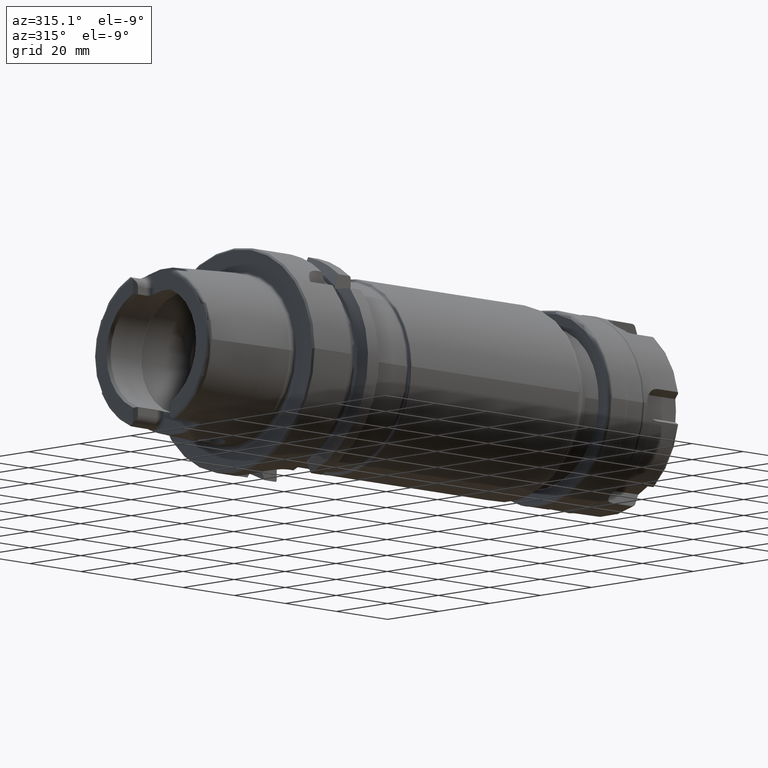
[diagram: clean part render]
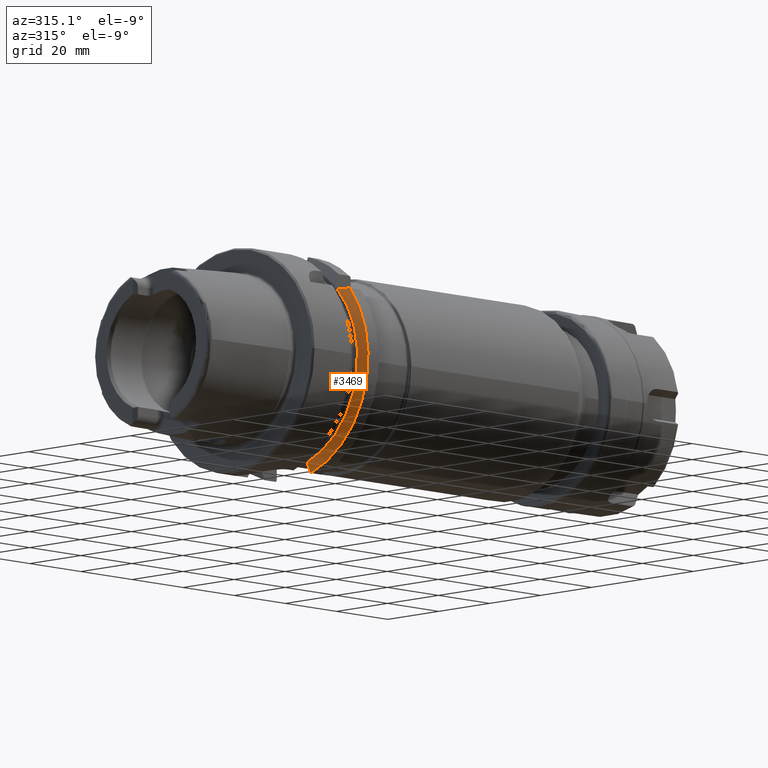
[diagram: same view with one face highlighted and labeled with its STEP entity id]
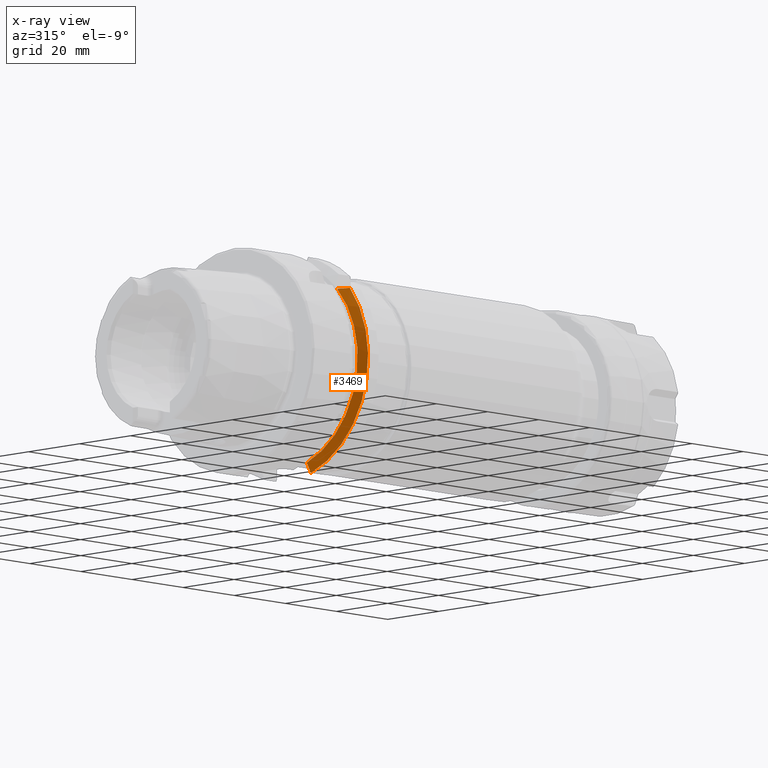
[diagram: x-ray of the same camera — body ghosted, the highlighted face saturated]
A machine part, auxiliary view. The second image highlights one B-rep face of the part: STEP entity #3469.
The next image is the same camera in x-ray: the body ghosted, the highlighted face saturated — about 0% of this face is hidden behind the body in this view.
In plain terms, the highlighted conical surface has half-angle 60 deg.
Its self-contained STEP definition (entity closure, byte-faithful):
#29=(
BOUNDED_CURVE()
B_SPLINE_CURVE(2,(#6226,#6227,#6228),.UNSPECIFIED.,.F.,.F.)
B_SPLINE_CURVE_WITH_KNOTS((3,3),(0.,0.378858277140999),.UNSPECIFIED.)
CURVE()
GEOMETRIC_REPRESENTATION_ITEM()
RATIONAL_B_SPLINE_CURVE((1.,1.00166199353854,1.))
REPRESENTATION_ITEM('')
);
#35=(
BOUNDED_CURVE()
B_SPLINE_CURVE(2,(#6366,#6367,#6368),.UNSPECIFIED.,.F.,.F.)
B_SPLINE_CURVE_WITH_KNOTS((3,3),(0.,0.311314369989023),.UNSPECIFIED.)
CURVE()
GEOMETRIC_REPRESENTATION_ITEM()
RATIONAL_B_SPLINE_CURVE((1.,1.00102053193598,1.))
REPRESENTATION_ITEM('')
);
#443=FACE_OUTER_BOUND('',#652,.T.);
#652=EDGE_LOOP('',(#2683,#2684,#2685,#2686));
#1208=CIRCLE('',#3803,28.8975952641916);
#1222=CIRCLE('',#3836,31.5);
#1470=VERTEX_POINT('',#6222);
#1472=VERTEX_POINT('',#6225);
#1494=VERTEX_POINT('',#6322);
#1499=VERTEX_POINT('',#6364);
#1875=EDGE_CURVE('',#1472,#1470,#29,.T.);
#1905=EDGE_CURVE('',#1470,#1494,#1208,.T.);
#1915=EDGE_CURVE('',#1494,#1499,#35,.T.);
#1962=EDGE_CURVE('',#1472,#1499,#1222,.T.);
#2683=ORIENTED_EDGE('',*,*,#1875,.T.);
#2684=ORIENTED_EDGE('',*,*,#1905,.T.);
#2685=ORIENTED_EDGE('',*,*,#1915,.T.);
#2686=ORIENTED_EDGE('',*,*,#1962,.F.);
#3356=CONICAL_SURFACE('',#3843,30.1987976320958,1.0471975511966);
#3469=ADVANCED_FACE('',(#443),#3356,.T.);
#3803=AXIS2_PLACEMENT_3D('',#6324,#4452,#4453);
#3836=AXIS2_PLACEMENT_3D('',#6576,#4538,#4539);
#3843=AXIS2_PLACEMENT_3D('',#6591,#4554,#4555);
#4452=DIRECTION('center_axis',(1.,0.,0.));
#4453=DIRECTION('ref_axis',(0.,0.,-1.));
#4538=DIRECTION('center_axis',(1.,0.,0.));
#4539=DIRECTION('ref_axis',(0.,0.,-1.));
#4554=DIRECTION('center_axis',(1.,0.,0.));
#4555=DIRECTION('ref_axis',(0.,-0.966819045705046,-0.255462194584608));
#6222=CARTESIAN_POINT('',(19.875,-20.8583559288126,20.));
#6225=CARTESIAN_POINT('',(21.3774990747593,-24.3361870472759,20.));
#6226=CARTESIAN_POINT('Ctrl Pts',(21.3774990747593,-24.3361870472759,20.));
#6227=CARTESIAN_POINT('Ctrl Pts',(20.5684390397668,-22.5223452916166,20.));
#6228=CARTESIAN_POINT('Ctrl Pts',(19.875,-20.8583559288126,20.));
#6322=CARTESIAN_POINT('',(19.875,-9.,-27.4603534582684));
#6324=CARTESIAN_POINT('Origin',(19.875,0.,0.));
#6364=CARTESIAN_POINT('',(21.3774990747593,-9.,-30.1869176962472));
#6366=CARTESIAN_POINT('Ctrl Pts',(19.875,-9.,-27.4603534582684));
#6367=CARTESIAN_POINT('Ctrl Pts',(20.5907174110267,-9.,-28.7648946319029));
#6368=CARTESIAN_POINT('Ctrl Pts',(21.3774990747593,-9.,-30.1869176962472));
#6576=CARTESIAN_POINT('Origin',(21.3774990747593,0.,0.));
#6591=CARTESIAN_POINT('Origin',(20.6262495373797,0.,0.));